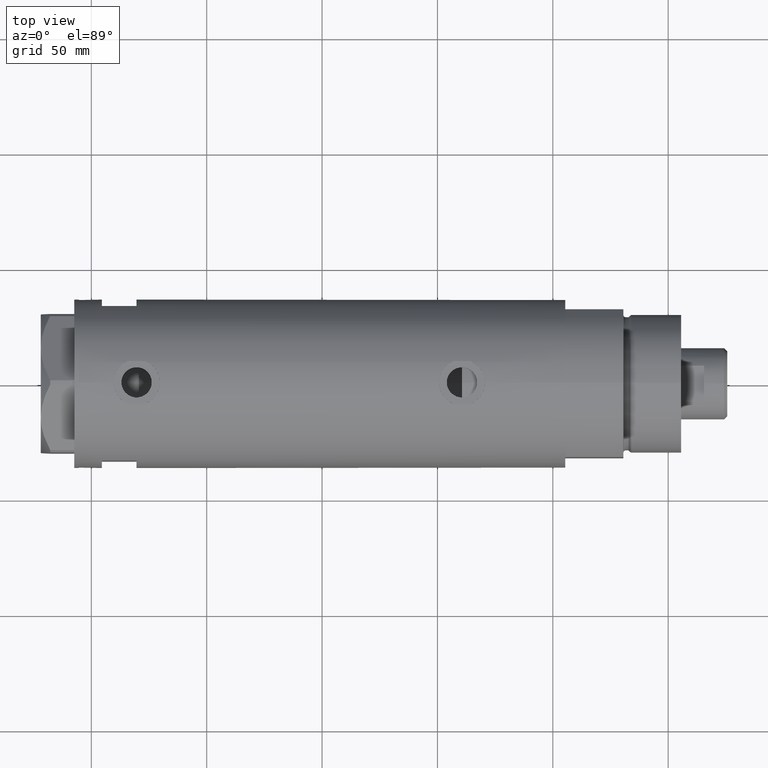
[diagram: clean part render]
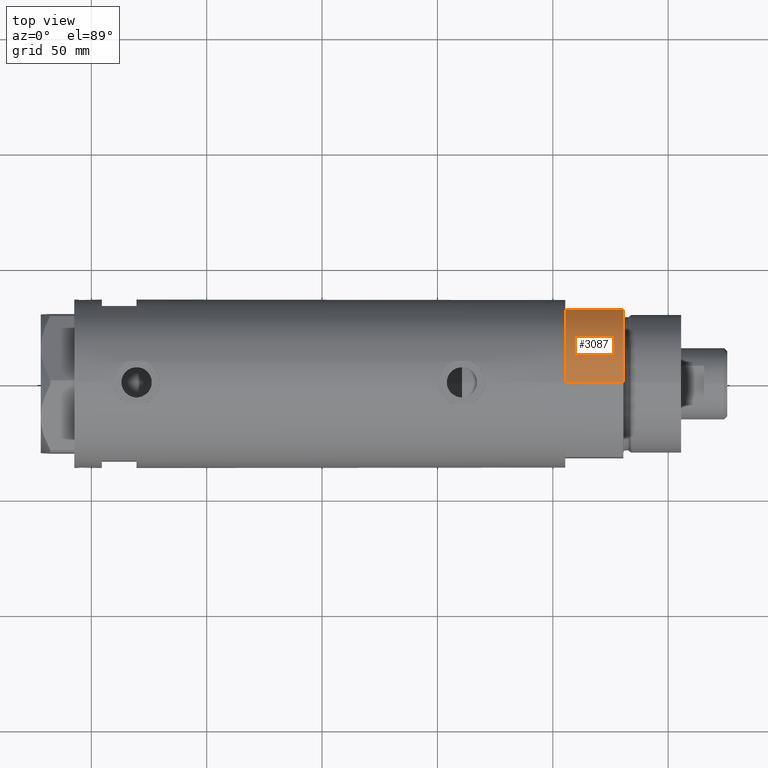
[diagram: same view with one face highlighted and labeled with its STEP entity id]
A machine part, top view. The second image highlights one B-rep face of the part: STEP entity #3087.
In plain terms, the highlighted cylindrical surface (partial cylindrical patch) has radius 36.5 mm, axis along (-1, -0, 0).
Its self-contained STEP definition (entity closure, byte-faithful):
#110 = DIRECTION ( 'NONE',  ( -1.000000000000000000, 0.000000000000000000, 0.000000000000000000 ) ) ;
#130 = CYLINDRICAL_SURFACE ( 'NONE', #1062, 36.50000000000000000 ) ;
#275 = ORIENTED_EDGE ( 'NONE', *, *, #2988, .F. ) ;
#345 = DIRECTION ( 'NONE',  ( 0.000000000000000000, 0.000000000000000000, 1.000000000000000000 ) ) ;
#429 = LINE ( 'NONE', #767, #1973 ) ;
#669 = VERTEX_POINT ( 'NONE', #3689 ) ;
#698 = CARTESIAN_POINT ( 'NONE',  ( -17.55704986607943141, 32.00000000000000000, 0.000000000000000000 ) ) ;
#718 = AXIS2_PLACEMENT_3D ( 'NONE', #1728, #345, #4385 ) ;
#767 = CARTESIAN_POINT ( 'NONE',  ( -36.50000000000000000, 0.000000000000000000, 25.19999999999999929 ) ) ;
#799 = VERTEX_POINT ( 'NONE', #698 ) ;
#854 = CIRCLE ( 'NONE', #930, 36.50000000000000000 ) ;
#930 = AXIS2_PLACEMENT_3D ( 'NONE', #3208, #2568, #3234 ) ;
#1016 = CARTESIAN_POINT ( 'NONE',  ( -17.55704986607943496, 32.00000000000000000, 25.19999999999999929 ) ) ;
#1062 = AXIS2_PLACEMENT_3D ( 'NONE', #1573, #3250, #110 ) ;
#1064 = ORIENTED_EDGE ( 'NONE', *, *, #2368, .F. ) ;
#1112 = EDGE_CURVE ( 'NONE', #799, #669, #2282, .T. ) ;
#1251 = LINE ( 'NONE', #2605, #3256 ) ;
#1333 = EDGE_CURVE ( 'NONE', #4302, #2343, #854, .T. ) ;
#1573 = CARTESIAN_POINT ( 'NONE',  ( 0.000000000000000000, 0.000000000000000000, 25.19999999999999929 ) ) ;
#1728 = CARTESIAN_POINT ( 'NONE',  ( 0.000000000000000000, 0.000000000000000000, 0.000000000000000000 ) ) ;
#1799 = ORIENTED_EDGE ( 'NONE', *, *, #1112, .T. ) ;
#1973 = VECTOR ( 'NONE', #2113, 1000.000000000000000 ) ;
#2113 = DIRECTION ( 'NONE',  ( -0.000000000000000000, -0.000000000000000000, -1.000000000000000000 ) ) ;
#2167 = FACE_OUTER_BOUND ( 'NONE', #2894, .T. ) ;
#2282 = CIRCLE ( 'NONE', #718, 36.50000000000000000 ) ;
#2343 = VERTEX_POINT ( 'NONE', #2557 ) ;
#2368 = EDGE_CURVE ( 'NONE', #799, #4302, #1251, .T. ) ;
#2557 = CARTESIAN_POINT ( 'NONE',  ( -36.50000000000000000, 0.000000000000000000, 25.19999999999999929 ) ) ;
#2568 = DIRECTION ( 'NONE',  ( 0.000000000000000000, 0.000000000000000000, 1.000000000000000000 ) ) ;
#2605 = CARTESIAN_POINT ( 'NONE',  ( -17.55704986607943141, 32.00000000000000000, 0.000000000000000000 ) ) ;
#2894 = EDGE_LOOP ( 'NONE', ( #275, #3030, #1064, #1799 ) ) ;
#2988 = EDGE_CURVE ( 'NONE', #2343, #669, #429, .T. ) ;
#3030 = ORIENTED_EDGE ( 'NONE', *, *, #1333, .F. ) ;
#3087 = ADVANCED_FACE ( 'NONE', ( #2167 ), #130, .T. ) ;
#3208 = CARTESIAN_POINT ( 'NONE',  ( 0.000000000000000000, 0.000000000000000000, 25.19999999999999929 ) ) ;
#3234 = DIRECTION ( 'NONE',  ( 1.000000000000000000, 0.000000000000000000, 0.000000000000000000 ) ) ;
#3250 = DIRECTION ( 'NONE',  ( -0.000000000000000000, -0.000000000000000000, -1.000000000000000000 ) ) ;
#3251 = DIRECTION ( 'NONE',  ( -0.000000000000000000, -0.000000000000000000, 1.000000000000000000 ) ) ;
#3256 = VECTOR ( 'NONE', #3251, 1000.000000000000000 ) ;
#3689 = CARTESIAN_POINT ( 'NONE',  ( -36.50000000000000000, 0.000000000000000000, 0.000000000000000000 ) ) ;
#4302 = VERTEX_POINT ( 'NONE', #1016 ) ;
#4385 = DIRECTION ( 'NONE',  ( 1.000000000000000000, 0.000000000000000000, 0.000000000000000000 ) ) ;